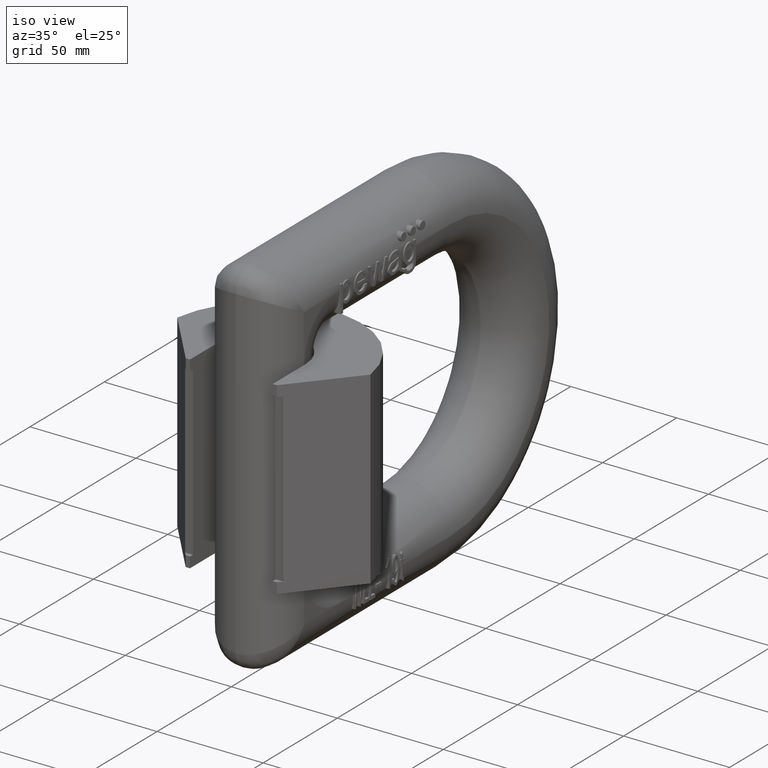
[diagram: clean part render]
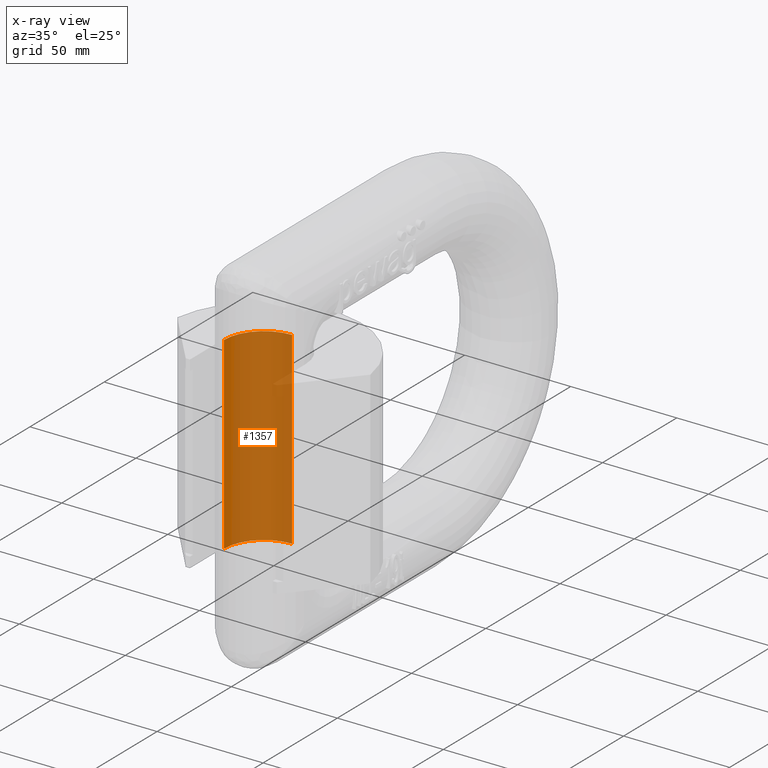
[diagram: x-ray — body ghosted, one internal face saturated and labeled with its STEP entity id]
A machine part, iso view, then the same camera in x-ray: the body is ghosted and one INTERNAL B-rep face — a face not visible from any outside direction — is saturated and labeled: STEP entity #1357.
In plain terms, the highlighted cylindrical surface (partial cylindrical patch) has radius 18.9 mm, axis along (0, 0, 1).
Its self-contained STEP definition (entity closure, byte-faithful):
#1357=ADVANCED_FACE('',(#1884),#1787,.T.);
#1787=CYLINDRICAL_SURFACE('',#9161,18.9);
#1884=FACE_OUTER_BOUND('',#2342,.T.);
#2342=EDGE_LOOP('',(#3335,#3336,#3337,#3338));
#2828=CIRCLE('',#9159,18.9);
#2829=CIRCLE('',#9160,18.9);
#3335=ORIENTED_EDGE('',*,*,#6725,.F.);
#3336=ORIENTED_EDGE('',*,*,#6433,.F.);
#3337=ORIENTED_EDGE('',*,*,#6726,.F.);
#3338=ORIENTED_EDGE('',*,*,#6469,.F.);
#5542=VERTEX_POINT('',#11317);
#5545=VERTEX_POINT('',#11322);
#5569=VERTEX_POINT('',#11394);
#5570=VERTEX_POINT('',#11396);
#6433=EDGE_CURVE('',#5545,#5542,#7745,.T.);
#6469=EDGE_CURVE('',#5569,#5570,#7768,.T.);
#6725=EDGE_CURVE('',#5542,#5569,#2828,.T.);
#6726=EDGE_CURVE('',#5570,#5545,#2829,.T.);
#7745=LINE('',#11323,#8323);
#7768=LINE('',#11395,#8346);
#8323=VECTOR('',#9594,1.);
#8346=VECTOR('',#9667,1.);
#9159=AXIS2_PLACEMENT_3D('',#12900,#9960,#9961);
#9160=AXIS2_PLACEMENT_3D('',#12901,#9962,#9963);
#9161=AXIS2_PLACEMENT_3D('',#12902,#9964,#9965);
#9594=DIRECTION('',(0.,0.,1.));
#9667=DIRECTION('',(0.,0.,-1.));
#9960=DIRECTION('',(0.,0.,1.));
#9961=DIRECTION('',(1.,0.,0.));
#9962=DIRECTION('',(0.,0.,-1.));
#9963=DIRECTION('',(-1.,0.,0.));
#9964=DIRECTION('',(0.,0.,1.));
#9965=DIRECTION('',(1.,0.,0.));
#11317=CARTESIAN_POINT('',(-0.0999999999999994,41.,44.5));
#11322=CARTESIAN_POINT('',(-0.0999999999999994,41.,-44.5));
#11323=CARTESIAN_POINT('',(-0.0999999999999994,41.,44.5));
#11394=CARTESIAN_POINT('',(-19.,22.1,44.5));
#11395=CARTESIAN_POINT('',(-19.,22.1,-44.5));
#11396=CARTESIAN_POINT('',(-19.,22.1,-44.5));
#12900=CARTESIAN_POINT('',(-0.0999999999999994,22.1,44.5));
#12901=CARTESIAN_POINT('',(-0.0999999999999994,22.1,-44.5));
#12902=CARTESIAN_POINT('',(-0.0999999999999994,22.1,76.5));